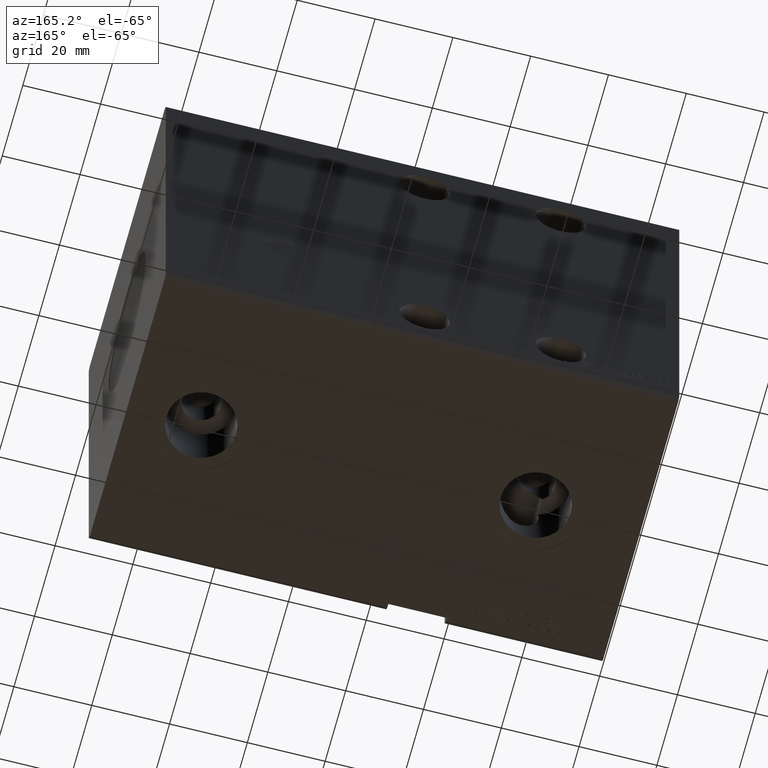
[diagram: clean part render]
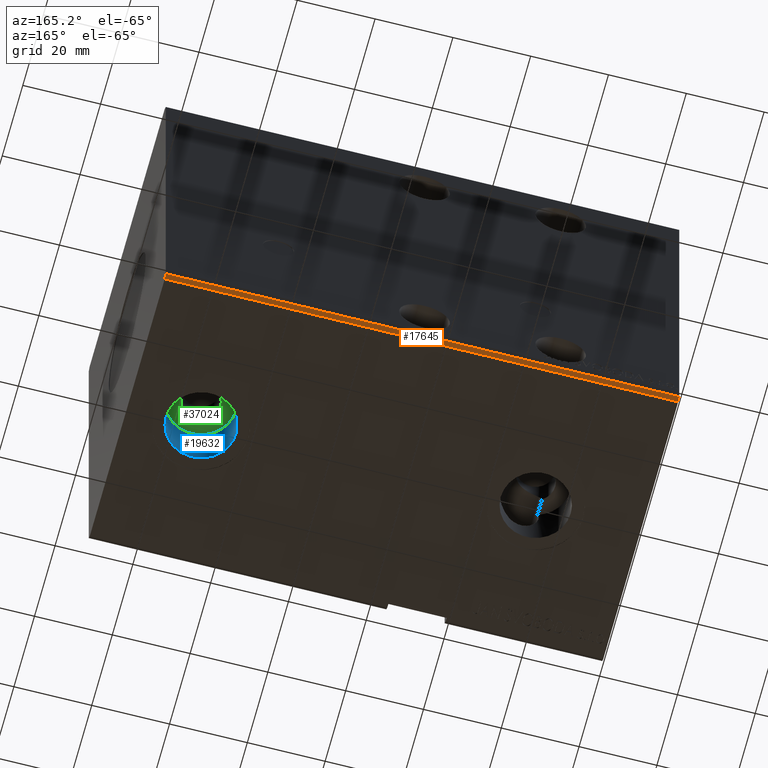
[diagram: same view with three faces highlighted in distinct colors, each labeled with its STEP entity id]
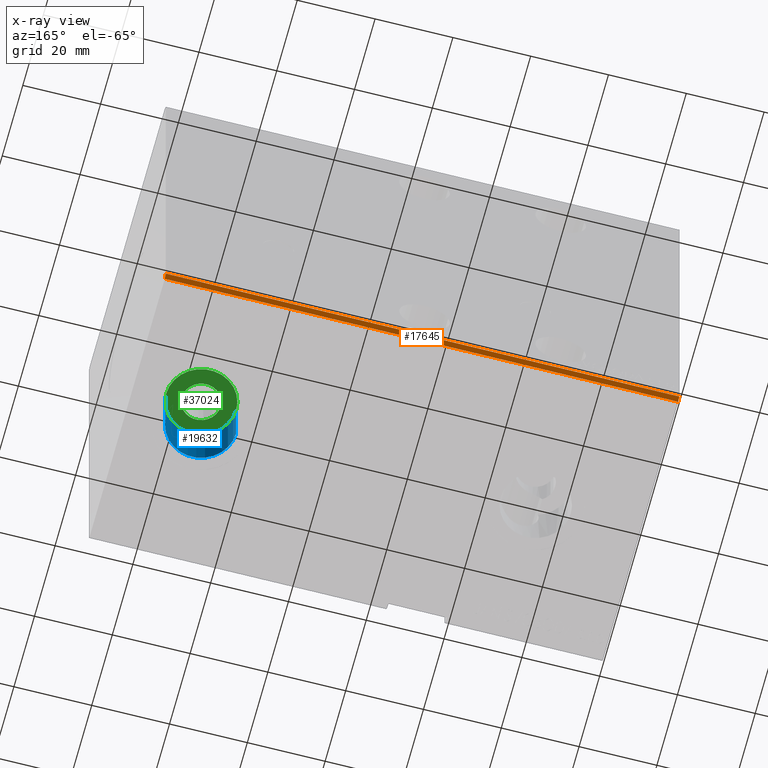
[diagram: x-ray of the same camera — body ghosted, the three highlighted faces saturated]
A machine part, auxiliary view with three faces highlighted in distinct colors.
The next image is the same camera in x-ray (body ghosted, the three faces saturated) — at least one of them is partly hidden behind the body in this view.
Their STEP definitions:

[orange] entity #17645 — the highlighted planar face has unit normal (0, -0.7071, 0.7071).
#525 = VECTOR ( 'NONE', #15728, 1000.000000000000000 ) ;
#1334 = DIRECTION ( 'NONE',  ( 0.000000000000000000, 0.7071067811865474617, 0.7071067811865474617 ) ) ;
#3096 = LINE ( 'NONE', #5790, #525 ) ;
#4743 = VECTOR ( 'NONE', #35226, 1000.000000000000114 ) ;
#5444 = EDGE_LOOP ( 'NONE', ( #11501, #11810, #40426, #10239 ) ) ;
#5790 = CARTESIAN_POINT ( 'NONE',  ( 132.0000000000000000, 36.50000000000000711, -50.00000000000000000 ) ) ;
#6256 = EDGE_CURVE ( 'NONE', #23862, #16827, #24104, .T. ) ;
#8080 = VERTEX_POINT ( 'NONE', #19568 ) ;
#8574 = VECTOR ( 'NONE', #25899, 1000.000000000000000 ) ;
#10239 = ORIENTED_EDGE ( 'NONE', *, *, #17819, .T. ) ;
#11501 = ORIENTED_EDGE ( 'NONE', *, *, #34576, .T. ) ;
#11810 = ORIENTED_EDGE ( 'NONE', *, *, #29744, .F. ) ;
#13226 = LINE ( 'NONE', #26290, #4743 ) ;
#15420 = PLANE ( 'NONE',  #21018 ) ;
#15728 = DIRECTION ( 'NONE',  ( -1.000000000000000000, -0.000000000000000000, -0.000000000000000000 ) ) ;
#15735 = LINE ( 'NONE', #31924, #8574 ) ;
#16827 = VERTEX_POINT ( 'NONE', #22616 ) ;
#16870 = CARTESIAN_POINT ( 'NONE',  ( 0.000000000000000000, 36.50000000000000711, -50.00000000000000000 ) ) ;
#17645 = ADVANCED_FACE ( 'NONE', ( #22674 ), #15420, .F. ) ;
#17819 = EDGE_CURVE ( 'NONE', #23862, #26278, #3096, .T. ) ;
#19568 = CARTESIAN_POINT ( 'NONE',  ( 0.000000000000000000, 37.50000000000000711, -49.00000000000000000 ) ) ;
#21018 = AXIS2_PLACEMENT_3D ( 'NONE', #40724, #25781, #38033 ) ;
#22616 = CARTESIAN_POINT ( 'NONE',  ( 132.0000000000000000, 37.50000000000000711, -49.00000000000000000 ) ) ;
#22674 = FACE_OUTER_BOUND ( 'NONE', #5444, .T. ) ;
#23862 = VERTEX_POINT ( 'NONE', #34441 ) ;
#24104 = LINE ( 'NONE', #29725, #25862 ) ;
#25781 = DIRECTION ( 'NONE',  ( 0.000000000000000000, -0.7071067811865475727, 0.7071067811865475727 ) ) ;
#25862 = VECTOR ( 'NONE', #1334, 1000.000000000000114 ) ;
#25899 = DIRECTION ( 'NONE',  ( -1.000000000000000000, -0.000000000000000000, -0.000000000000000000 ) ) ;
#26278 = VERTEX_POINT ( 'NONE', #16870 ) ;
#26290 = CARTESIAN_POINT ( 'NONE',  ( 0.000000000000000000, 36.50000000000000711, -50.00000000000000000 ) ) ;
#29725 = CARTESIAN_POINT ( 'NONE',  ( 132.0000000000000000, 36.50000000000000711, -50.00000000000000000 ) ) ;
#29744 = EDGE_CURVE ( 'NONE', #16827, #8080, #15735, .T. ) ;
#31924 = CARTESIAN_POINT ( 'NONE',  ( 132.0000000000000000, 37.50000000000000711, -49.00000000000000000 ) ) ;
#34441 = CARTESIAN_POINT ( 'NONE',  ( 132.0000000000000000, 36.50000000000000711, -50.00000000000000000 ) ) ;
#34576 = EDGE_CURVE ( 'NONE', #26278, #8080, #13226, .T. ) ;
#35226 = DIRECTION ( 'NONE',  ( 0.000000000000000000, 0.7071067811865474617, 0.7071067811865474617 ) ) ;
#38033 = DIRECTION ( 'NONE',  ( 0.000000000000000000, -0.7071067811865474617, -0.7071067811865474617 ) ) ;
#40426 = ORIENTED_EDGE ( 'NONE', *, *, #6256, .F. ) ;
#40724 = CARTESIAN_POINT ( 'NONE',  ( 132.0000000000000000, 36.50000000000000711, -50.00000000000000000 ) ) ;

[blue] entity #19632 — the highlighted cylindrical surface (edge-blend (fillet) strip) has radius 9 mm, axis along (-0, -0, -1).
#216 = DIRECTION ( 'NONE',  ( -0.000000000000000000, -0.000000000000000000, -1.000000000000000000 ) ) ;
#599 = VECTOR ( 'NONE', #30699, 1000.000000000000000 ) ;
#1200 = AXIS2_PLACEMENT_3D ( 'NONE', #23128, #20222, #26242 ) ;
#2126 = VECTOR ( 'NONE', #216, 1000.000000000000000 ) ;
#3554 = EDGE_CURVE ( 'NONE', #11477, #19981, #24160, .T. ) ;
#4235 = DIRECTION ( 'NONE',  ( 0.000000000000000000, 0.000000000000000000, -1.000000000000000000 ) ) ;
#6658 = DIRECTION ( 'NONE',  ( 0.000000000000000000, 0.000000000000000000, -1.000000000000000000 ) ) ;
#7162 = CYLINDRICAL_SURFACE ( 'NONE', #1200, 8.999999999999994671 ) ;
#9722 = LINE ( 'NONE', #25906, #2126 ) ;
#10163 = CARTESIAN_POINT ( 'NONE',  ( 122.0000000000000000, -1.227865277631244321E-14, -36.29999999999999716 ) ) ;
#11046 = ORIENTED_EDGE ( 'NONE', *, *, #3554, .T. ) ;
#11477 = VERTEX_POINT ( 'NONE', #11899 ) ;
#11899 = CARTESIAN_POINT ( 'NONE',  ( 122.0000000000000000, -1.227865277631244321E-14, -49.89999999999999858 ) ) ;
#11987 = CIRCLE ( 'NONE', #17288, 8.999999999999994671 ) ;
#13081 = EDGE_CURVE ( 'NONE', #30519, #19981, #18053, .T. ) ;
#17103 = ORIENTED_EDGE ( 'NONE', *, *, #13081, .F. ) ;
#17288 = AXIS2_PLACEMENT_3D ( 'NONE', #19094, #6658, #25518 ) ;
#18053 = LINE ( 'NONE', #27792, #599 ) ;
#19094 = CARTESIAN_POINT ( 'NONE',  ( 113.0000000000000000, -1.338083489554506112E-14, -36.29999999999999716 ) ) ;
#19632 = ADVANCED_FACE ( 'NONE', ( #22728 ), #7162, .F. ) ;
#19981 = VERTEX_POINT ( 'NONE', #32371 ) ;
#20222 = DIRECTION ( 'NONE',  ( -0.000000000000000000, -0.000000000000000000, -1.000000000000000000 ) ) ;
#21086 = ORIENTED_EDGE ( 'NONE', *, *, #33222, .F. ) ;
#21846 = ORIENTED_EDGE ( 'NONE', *, *, #36260, .T. ) ;
#22728 = FACE_OUTER_BOUND ( 'NONE', #32715, .T. ) ;
#23128 = CARTESIAN_POINT ( 'NONE',  ( 113.0000000000000000, -1.338083489554506112E-14, -36.29999999999999716 ) ) ;
#24160 = CIRCLE ( 'NONE', #40755, 8.999999999999994671 ) ;
#25518 = DIRECTION ( 'NONE',  ( -1.000000000000000000, 0.000000000000000000, 0.000000000000000000 ) ) ;
#25906 = CARTESIAN_POINT ( 'NONE',  ( 122.0000000000000000, -1.227865277631244321E-14, -36.29999999999999716 ) ) ;
#26242 = DIRECTION ( 'NONE',  ( -1.000000000000000000, 0.000000000000000000, 0.000000000000000000 ) ) ;
#27792 = CARTESIAN_POINT ( 'NONE',  ( 104.0000000000000142, -1.338083489554506112E-14, -36.29999999999999716 ) ) ;
#28848 = VERTEX_POINT ( 'NONE', #10163 ) ;
#29723 = CARTESIAN_POINT ( 'NONE',  ( 104.0000000000000142, -1.338083489554506112E-14, -36.29999999999999716 ) ) ;
#30519 = VERTEX_POINT ( 'NONE', #29723 ) ;
#30699 = DIRECTION ( 'NONE',  ( -0.000000000000000000, -0.000000000000000000, -1.000000000000000000 ) ) ;
#32371 = CARTESIAN_POINT ( 'NONE',  ( 104.0000000000000142, -1.338083489554506112E-14, -49.89999999999999858 ) ) ;
#32646 = CARTESIAN_POINT ( 'NONE',  ( 113.0000000000000000, -1.338083489554506112E-14, -49.89999999999999858 ) ) ;
#32715 = EDGE_LOOP ( 'NONE', ( #21086, #21846, #11046, #17103 ) ) ;
#33222 = EDGE_CURVE ( 'NONE', #28848, #30519, #11987, .T. ) ;
#33251 = DIRECTION ( 'NONE',  ( -1.000000000000000000, 0.000000000000000000, 0.000000000000000000 ) ) ;
#36260 = EDGE_CURVE ( 'NONE', #28848, #11477, #9722, .T. ) ;
#40755 = AXIS2_PLACEMENT_3D ( 'NONE', #32646, #4235, #33251 ) ;

[green] entity #37024 — the highlighted planar face has unit normal (0, 0, -1).
#376 = EDGE_LOOP ( 'NONE', ( #11108, #25416 ) ) ;
#3060 = DIRECTION ( 'NONE',  ( 0.000000000000000000, 0.000000000000000000, -1.000000000000000000 ) ) ;
#3290 = DIRECTION ( 'NONE',  ( -1.000000000000000000, 0.000000000000000000, 0.000000000000000000 ) ) ;
#5974 = CIRCLE ( 'NONE', #22518, 5.000000000000004441 ) ;
#6658 = DIRECTION ( 'NONE',  ( 0.000000000000000000, 0.000000000000000000, -1.000000000000000000 ) ) ;
#10163 = CARTESIAN_POINT ( 'NONE',  ( 122.0000000000000000, -1.227865277631244321E-14, -36.29999999999999716 ) ) ;
#10205 = EDGE_CURVE ( 'NONE', #36231, #14793, #29919, .T. ) ;
#10706 = CARTESIAN_POINT ( 'NONE',  ( 113.0000000000000000, -1.338083489554506112E-14, -36.29999999999999716 ) ) ;
#11108 = ORIENTED_EDGE ( 'NONE', *, *, #16400, .F. ) ;
#11765 = FACE_OUTER_BOUND ( 'NONE', #32894, .T. ) ;
#11987 = CIRCLE ( 'NONE', #17288, 8.999999999999994671 ) ;
#13810 = DIRECTION ( 'NONE',  ( 0.000000000000000000, 0.000000000000000000, -1.000000000000000000 ) ) ;
#14004 = DIRECTION ( 'NONE',  ( -1.000000000000000000, 0.000000000000000000, 0.000000000000000000 ) ) ;
#14793 = VERTEX_POINT ( 'NONE', #17855 ) ;
#14920 = AXIS2_PLACEMENT_3D ( 'NONE', #10706, #13810, #33105 ) ;
#15381 = AXIS2_PLACEMENT_3D ( 'NONE', #34779, #3060, #24418 ) ;
#16400 = EDGE_CURVE ( 'NONE', #14793, #36231, #5974, .T. ) ;
#17288 = AXIS2_PLACEMENT_3D ( 'NONE', #19094, #6658, #25518 ) ;
#17855 = CARTESIAN_POINT ( 'NONE',  ( 108.0000000000000000, -1.338083489554506112E-14, -36.29999999999999716 ) ) ;
#19038 = CARTESIAN_POINT ( 'NONE',  ( 113.0000000000000000, -1.338083489554506112E-14, -36.29999999999999716 ) ) ;
#19094 = CARTESIAN_POINT ( 'NONE',  ( 113.0000000000000000, -1.338083489554506112E-14, -36.29999999999999716 ) ) ;
#20521 = EDGE_CURVE ( 'NONE', #30519, #28848, #36989, .T. ) ;
#21321 = FACE_BOUND ( 'NONE', #376, .T. ) ;
#21562 = CARTESIAN_POINT ( 'NONE',  ( 118.0000000000000142, -1.276851149597138381E-14, -36.29999999999999716 ) ) ;
#22518 = AXIS2_PLACEMENT_3D ( 'NONE', #19038, #31689, #3290 ) ;
#24418 = DIRECTION ( 'NONE',  ( -1.000000000000000000, 0.000000000000000000, -0.000000000000000000 ) ) ;
#25416 = ORIENTED_EDGE ( 'NONE', *, *, #10205, .F. ) ;
#25518 = DIRECTION ( 'NONE',  ( -1.000000000000000000, 0.000000000000000000, 0.000000000000000000 ) ) ;
#26631 = ORIENTED_EDGE ( 'NONE', *, *, #33222, .T. ) ;
#28848 = VERTEX_POINT ( 'NONE', #10163 ) ;
#29696 = AXIS2_PLACEMENT_3D ( 'NONE', #32483, #32881, #14004 ) ;
#29723 = CARTESIAN_POINT ( 'NONE',  ( 104.0000000000000142, -1.338083489554506112E-14, -36.29999999999999716 ) ) ;
#29919 = CIRCLE ( 'NONE', #14920, 5.000000000000004441 ) ;
#30519 = VERTEX_POINT ( 'NONE', #29723 ) ;
#31047 = PLANE ( 'NONE',  #15381 ) ;
#31689 = DIRECTION ( 'NONE',  ( 0.000000000000000000, 0.000000000000000000, -1.000000000000000000 ) ) ;
#32483 = CARTESIAN_POINT ( 'NONE',  ( 113.0000000000000000, -1.338083489554506112E-14, -36.29999999999999716 ) ) ;
#32881 = DIRECTION ( 'NONE',  ( 0.000000000000000000, 0.000000000000000000, -1.000000000000000000 ) ) ;
#32894 = EDGE_LOOP ( 'NONE', ( #33819, #26631 ) ) ;
#33105 = DIRECTION ( 'NONE',  ( -1.000000000000000000, 0.000000000000000000, 0.000000000000000000 ) ) ;
#33222 = EDGE_CURVE ( 'NONE', #28848, #30519, #11987, .T. ) ;
#33819 = ORIENTED_EDGE ( 'NONE', *, *, #20521, .T. ) ;
#34779 = CARTESIAN_POINT ( 'NONE',  ( 0.000000000000000000, 0.000000000000000000, -36.29999999999999716 ) ) ;
#36231 = VERTEX_POINT ( 'NONE', #21562 ) ;
#36989 = CIRCLE ( 'NONE', #29696, 8.999999999999994671 ) ;
#37024 = ADVANCED_FACE ( 'NONE', ( #21321, #11765 ), #31047, .T. ) ;